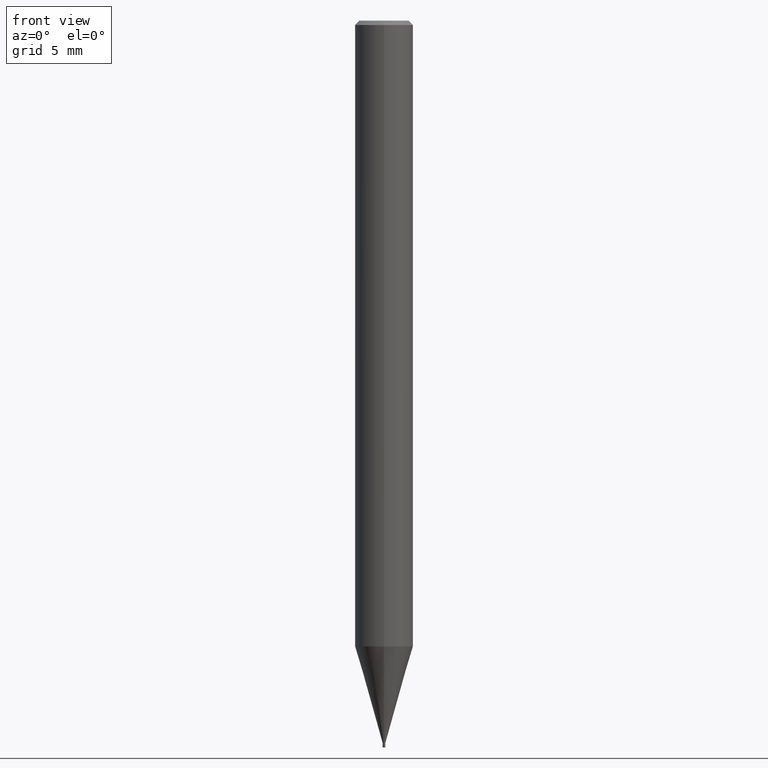
[diagram: clean part render]
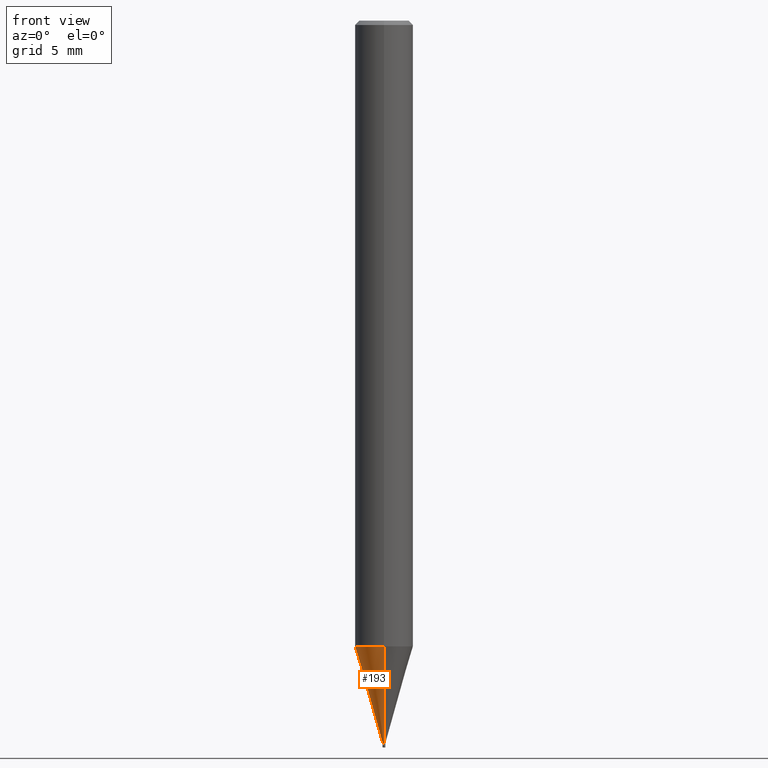
[diagram: same view with one face highlighted and labeled with its STEP entity id]
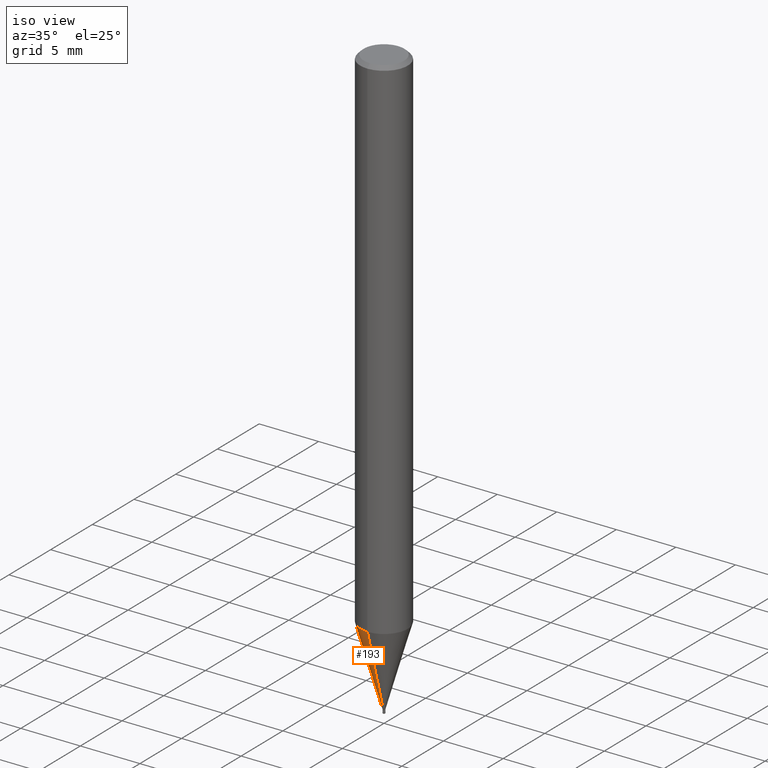
[diagram: same view with one face highlighted and labeled with its STEP entity id]
A machine part, front view. The second image highlights one B-rep face of the part: STEP entity #193.
A second angle (iso view) of the same face is appended — the face is thin or edge-on in the first view.
In plain terms, the highlighted conical surface has half-angle 16.001 deg.
Its self-contained STEP definition (entity closure, byte-faithful):
#161=EDGE_CURVE('',#285,#265,#397,.T.);
#193=ADVANCED_FACE('',(#434),#435,.T.);
#219=VERTEX_POINT('',#465);
#221=EDGE_CURVE('',#263,#219,#467,.T.);
#229=EDGE_CURVE('',#285,#219,#476,.T.);
#241=EDGE_CURVE('',#265,#263,#489,.T.);
#263=VERTEX_POINT('',#514);
#265=VERTEX_POINT('',#516);
#285=VERTEX_POINT('',#539);
#397=LINE('',#661,#662);
#434=FACE_OUTER_BOUND('',#710,.T.);
#435=CONICAL_SURFACE('',#711,1.0462,0.279262361421134);
#465=CARTESIAN_POINT('',(0.0,0.09245,-49.69));
#467=LINE('',#751,#752);
#476=CIRCLE('',#762,0.09245);
#489=CIRCLE('',#776,1.99995);
#514=CARTESIAN_POINT('',(0.0,1.99995,-43.038));
#516=CARTESIAN_POINT('',(2.44915147732706E-016,-1.99995,-43.038));
#539=CARTESIAN_POINT('',(1.13214857410879E-017,-0.09245,-49.69));
#661=CARTESIAN_POINT('',(1.28118316736897E-016,-1.0462,-46.364));
#662=VECTOR('',#966,1.0);
#710=EDGE_LOOP('',(#1023,#1024,#1025,#1026));
#711=AXIS2_PLACEMENT_3D('',#1027,#1028,#1029);
#751=CARTESIAN_POINT('',(-1.28118316736897E-016,1.0462,-46.364));
#752=VECTOR('',#1067,1.0);
#762=AXIS2_PLACEMENT_3D('',#1074,#1075,#1076);
#776=AXIS2_PLACEMENT_3D('',#1089,#1090,#1091);
#966=DIRECTION('',(3.37558653544073E-017,-0.275646661876649,0.961259027419904));
#1023=ORIENTED_EDGE('',*,*,#221,.T.);
#1024=ORIENTED_EDGE('',*,*,#229,.F.);
#1025=ORIENTED_EDGE('',*,*,#161,.T.);
#1026=ORIENTED_EDGE('',*,*,#241,.T.);
#1027=CARTESIAN_POINT('',(0.0,0.0,-46.364));
#1028=DIRECTION('',(-0.0,-0.0,1.0));
#1029=DIRECTION('',(0.0,1.0,0.0));
#1067=DIRECTION('',(3.37558653544073E-017,-0.275646661876649,-0.961259027419904));
#1074=CARTESIAN_POINT('',(0.0,0.0,-49.69));
#1075=DIRECTION('',(0.0,0.0,-1.0));
#1076=DIRECTION('',(0.0,1.0,0.0));
#1089=CARTESIAN_POINT('',(0.0,0.0,-43.038));
#1090=DIRECTION('',(0.0,0.0,-1.0));
#1091=DIRECTION('',(0.0,1.0,0.0));